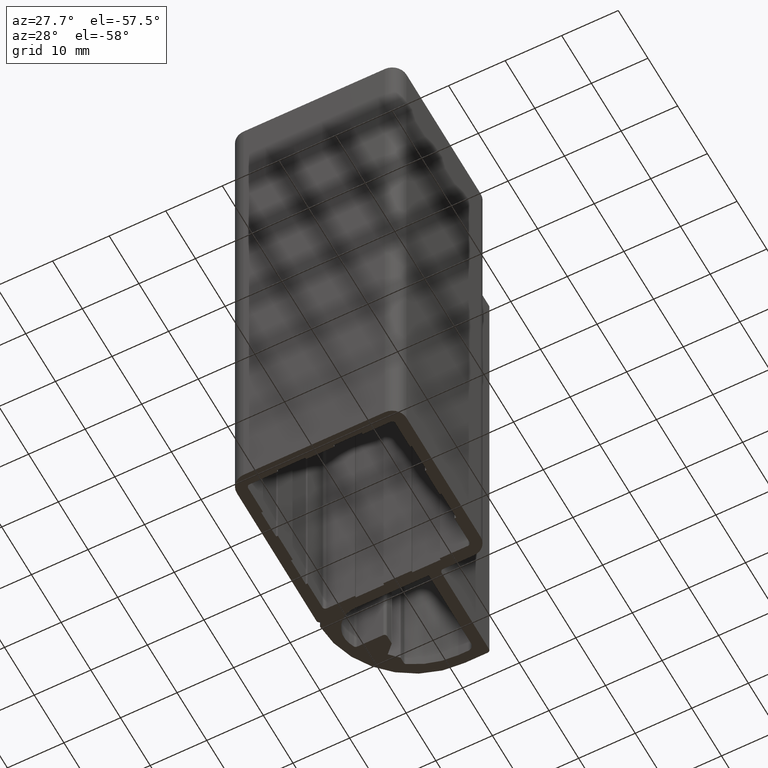
[diagram: clean part render]
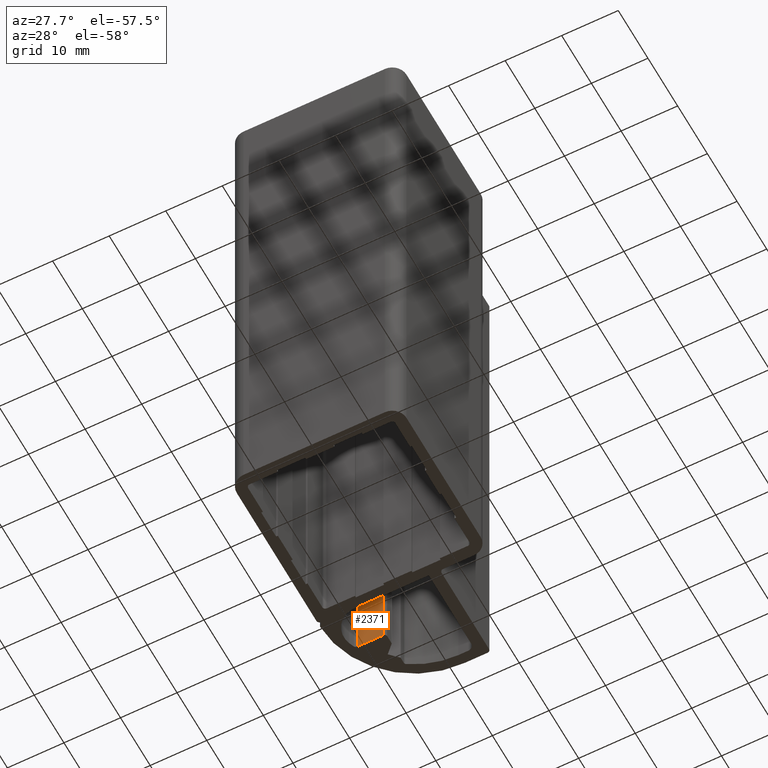
[diagram: same view with one face highlighted and labeled with its STEP entity id]
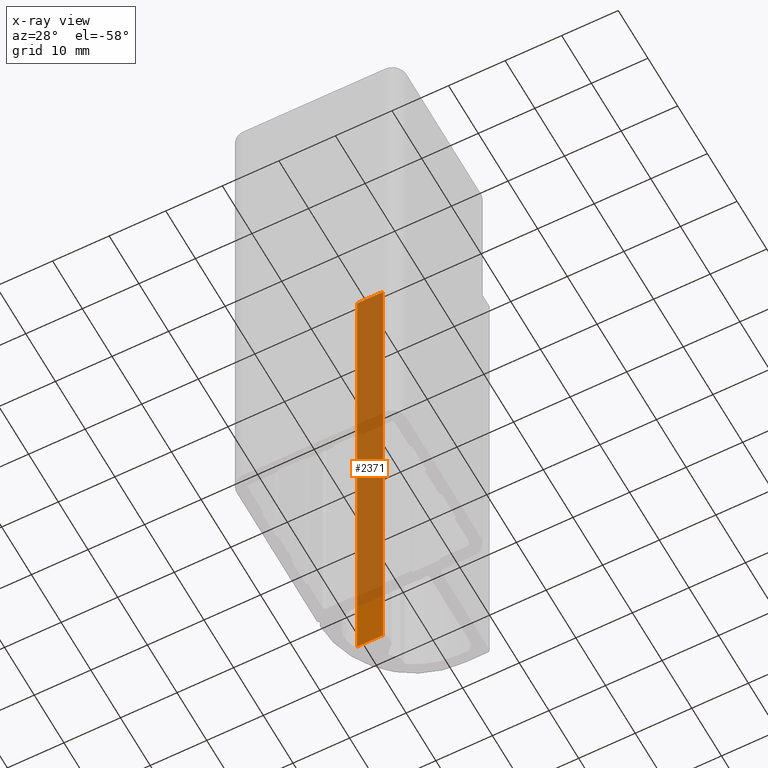
[diagram: x-ray of the same camera — body ghosted, the highlighted face saturated]
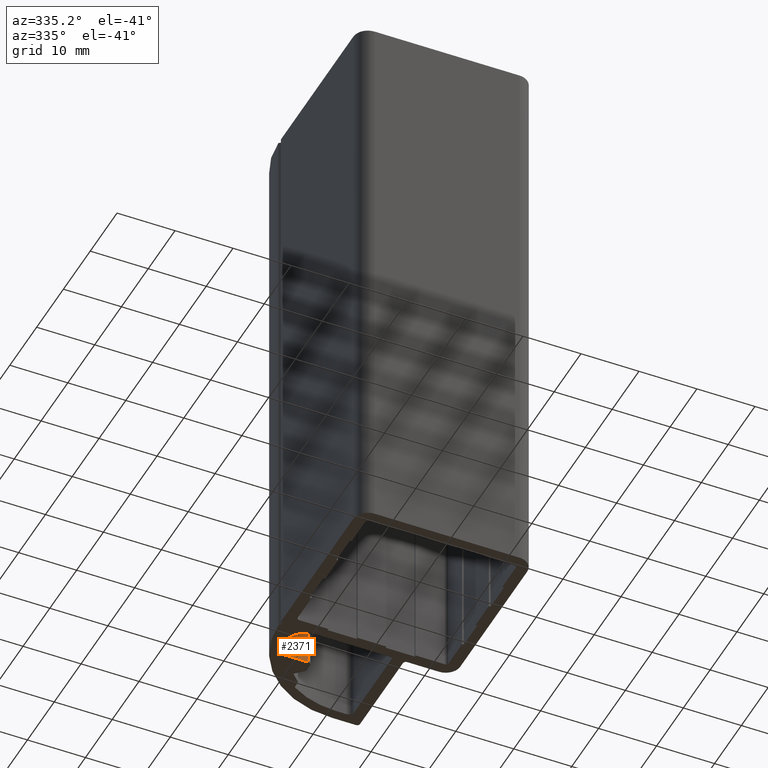
[diagram: same view with one face highlighted and labeled with its STEP entity id]
A machine part, auxiliary view. The second image highlights one B-rep face of the part: STEP entity #2371.
The next image is the same camera in x-ray: the body ghosted, the highlighted face saturated — about 88% of this face is hidden behind the body in this view.
A second angle (auxiliary view) of the same face is appended — the face is thin or edge-on in the first view.
In plain terms, the highlighted planar face has unit normal (0, -1, 0).
Its self-contained STEP definition (entity closure, byte-faithful):
#795=CARTESIAN_POINT('',(-11.573451478616960,36.499999999969646,100.0));
#796=VERTEX_POINT('',#795);
#806=CARTESIAN_POINT('',(-7.000000000014950,36.499999999969646,100.0));
#807=VERTEX_POINT('',#806);
#808=CARTESIAN_POINT('',(-7.000000000014950,36.499999999969646,100.0));
#809=DIRECTION('',(-1.0,0.0,0.0));
#810=VECTOR('',#809,4.573451478602010);
#811=LINE('',#808,#810);
#812=EDGE_CURVE('',#807,#796,#811,.T.);
#1393=CARTESIAN_POINT('',(-7.000000000014950,36.499999999969646,0.0));
#1394=VERTEX_POINT('',#1393);
#1402=CARTESIAN_POINT('',(-11.573451478616960,36.499999999969646,0.0));
#1403=VERTEX_POINT('',#1402);
#1404=CARTESIAN_POINT('',(-11.573451478616960,36.499999999969646,0.0));
#1405=DIRECTION('',(1.0,0.0,0.0));
#1406=VECTOR('',#1405,4.573451478602010);
#1407=LINE('',#1404,#1406);
#1408=EDGE_CURVE('',#1403,#1394,#1407,.T.);
#2112=CARTESIAN_POINT('',(-11.573451478616960,36.499999999969646,100.0));
#2113=DIRECTION('',(0.0,0.0,-1.0));
#2114=VECTOR('',#2113,100.0);
#2115=LINE('',#2112,#2114);
#2116=EDGE_CURVE('',#796,#1403,#2115,.T.);
#2349=CARTESIAN_POINT('',(-7.000000000014950,36.499999999969646,100.0));
#2350=DIRECTION('',(0.0,0.0,-1.0));
#2351=VECTOR('',#2350,100.0);
#2352=LINE('',#2349,#2351);
#2353=EDGE_CURVE('',#807,#1394,#2352,.T.);
#2360=CARTESIAN_POINT('',(-7.000000000014950,36.499999999969646,100.0));
#2361=DIRECTION('',(0.0,-1.0,0.0));
#2362=DIRECTION('',(-1.0,0.0,0.0));
#2363=AXIS2_PLACEMENT_3D('',#2360,#2361,#2362);
#2364=PLANE('',#2363);
#2365=ORIENTED_EDGE('',*,*,#2116,.T.);
#2366=ORIENTED_EDGE('',*,*,#1408,.T.);
#2367=ORIENTED_EDGE('',*,*,#2353,.F.);
#2368=ORIENTED_EDGE('',*,*,#812,.T.);
#2369=EDGE_LOOP('',(#2365,#2366,#2367,#2368));
#2370=FACE_OUTER_BOUND('',#2369,.T.);
#2371=ADVANCED_FACE('',(#2370),#2364,.T.);